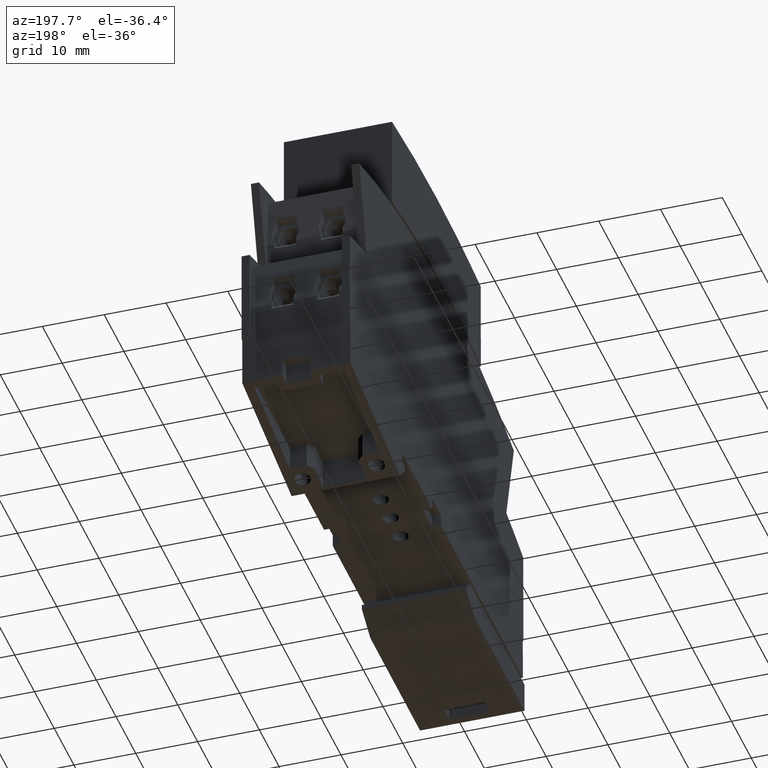
[diagram: clean part render]
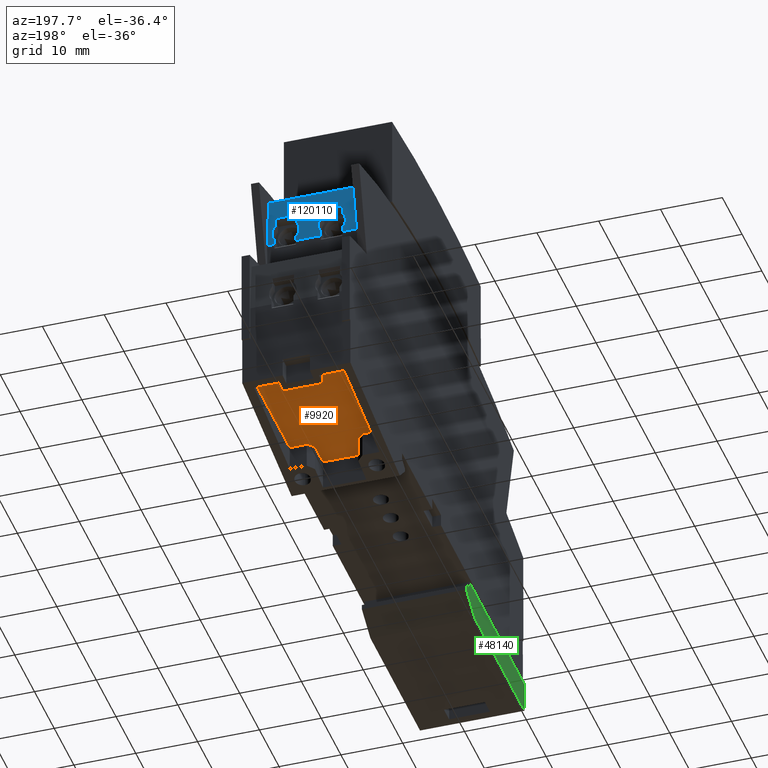
[diagram: same view with three faces highlighted in distinct colors, each labeled with its STEP entity id]
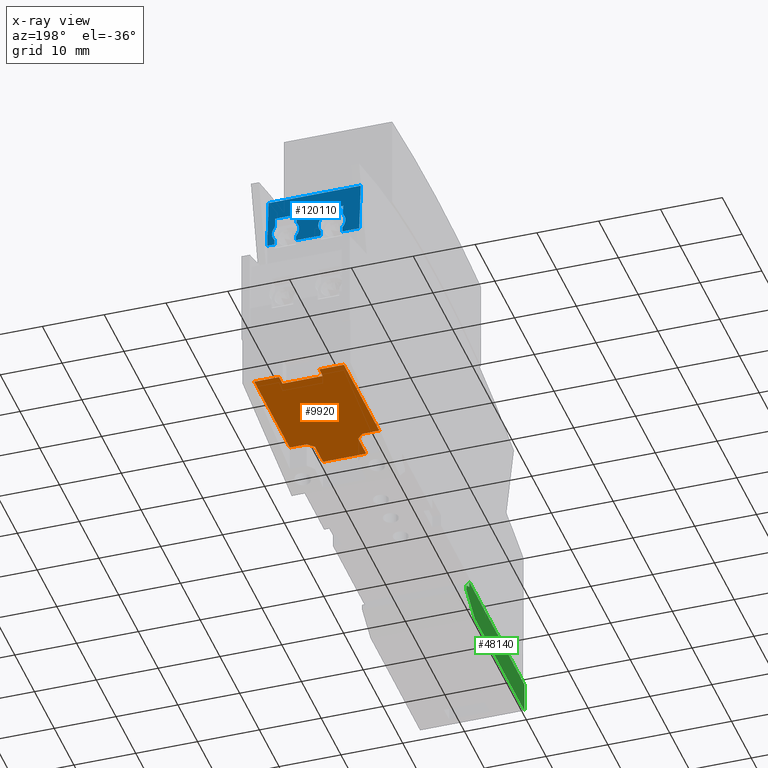
[diagram: x-ray of the same camera — body ghosted, the three highlighted faces saturated]
A machine part, auxiliary view with three faces highlighted in distinct colors.
The next image is the same camera in x-ray (body ghosted, the three faces saturated) — at least one of them is partly hidden behind the body in this view.
Their STEP definitions:

[orange] entity #9920 — the highlighted planar face has unit normal (-0, -0.0017, -1).
#8730=CARTESIAN_POINT('',(15.7920688286419,-0.134378830401207,
8.74999999999998));
#8740=DIRECTION('',(-0.00174532836589892,-0.999998476913288,
-1.81497852658377E-18));
#8750=DIRECTION('',(-0.999998476913288,0.00174532836589892,
2.39756207454349E-18));
#8760=AXIS2_PLACEMENT_3D('',#8730,#8740,#8750);
#8770=PLANE('',#8760);
#8780=CARTESIAN_POINT('',(-58.3078183106328,-0.00504999848809717,12.));
#8790=DIRECTION('',(0.999998476913288,-0.00174532836589892,
-2.37959924548987E-18));
#8800=VECTOR('',#8790,1.);
#8810=LINE('',#8780,#8800);
#8820=CARTESIAN_POINT('',(22.9920578624175,-0.146945194635677,12.));
#8830=VERTEX_POINT('',#8820);
#8840=CARTESIAN_POINT('',(24.7920551208614,-0.150086785694299,12.));
#8850=VERTEX_POINT('',#8840);
#8860=EDGE_CURVE('',#8830,#8850,#8810,.T.);
#8870=ORIENTED_EDGE('',*,*,#8860,.T.);
#8880=CARTESIAN_POINT('',(22.9920578624175,-0.146945194635677,94.));
#8890=DIRECTION('',(2.38287876757461E-18,-1.81914020319758E-18,1.));
#8900=VECTOR('',#8890,1.);
#8910=LINE('',#8880,#8900);
#8920=CARTESIAN_POINT('',(22.9920578624175,-0.146945194635677,5.5));
#8930=VERTEX_POINT('',#8920);
#8940=EDGE_CURVE('',#8930,#8830,#8910,.T.);
#8950=ORIENTED_EDGE('',*,*,#8940,.T.);
#8960=CARTESIAN_POINT('',(-58.3078183106328,-0.00504999848809717,
5.49999999999969));
#8970=DIRECTION('',(-0.999998476913288,0.00174532836589892,
-3.85256145848074E-15));
#8980=VECTOR('',#8970,1.);
#8990=LINE('',#8960,#8980);
#9000=CARTESIAN_POINT('',(24.7920551208614,-0.150086785694299,
5.50000000000001));
#9010=VERTEX_POINT('',#9000);
#9020=EDGE_CURVE('',#9010,#8930,#8990,.T.);
#9030=ORIENTED_EDGE('',*,*,#9020,.T.);
#9040=CARTESIAN_POINT('',(24.7920551208614,-0.150086785694299,94.));
#9050=DIRECTION('',(2.38287876757461E-18,-1.81914020319758E-18,1.));
#9060=VECTOR('',#9050,1.);
#9070=LINE('',#9040,#9060);
#9080=CARTESIAN_POINT('',(24.7920551208614,-0.150086785694299,1.5));
#9090=VERTEX_POINT('',#9080);
#9100=EDGE_CURVE('',#9090,#9010,#9070,.T.);
#9110=ORIENTED_EDGE('',*,*,#9100,.T.);
#9120=CARTESIAN_POINT('',(-58.3078183106328,-0.00504999848809717,
1.49999999999999));
#9130=DIRECTION('',(0.999998476913288,-0.00174532836589892,
1.42180690419244E-16));
#9140=VECTOR('',#9130,1.);
#9150=LINE('',#9120,#9140);
#9160=CARTESIAN_POINT('',(6.79208253642226,-0.118670875108116,1.5));
#9170=VERTEX_POINT('',#9160);
#9180=EDGE_CURVE('',#9170,#9090,#9150,.T.);
#9190=ORIENTED_EDGE('',*,*,#9180,.T.);
#9200=CARTESIAN_POINT('',(6.79208253642219,-0.118670875108116,94.));
#9210=DIRECTION('',(9.22801565948442E-16,2.04387088737263E-19,-1.));
#9220=VECTOR('',#9210,1.);
#9230=LINE('',#9200,#9220);
#9240=CARTESIAN_POINT('',(6.79208253642226,-0.118670875108116,4.25));
#9250=VERTEX_POINT('',#9240);
#9260=EDGE_CURVE('',#9250,#9170,#9230,.T.);
#9270=ORIENTED_EDGE('',*,*,#9260,.T.);
#9280=CARTESIAN_POINT('',(-58.3078183106328,-0.00504999848809717,
69.3499999999991));
#9290=DIRECTION('',(0.70710570420161,-0.00123413352292437,
-0.707106781186543));
#9300=VECTOR('',#9290,1.);
#9310=LINE('',#9280,#9300);
#9320=CARTESIAN_POINT('',(5.79208405950897,-0.116925546742216,
5.25000000000001));
#9330=VERTEX_POINT('',#9320);
#9340=EDGE_CURVE('',#9330,#9250,#9310,.T.);
#9350=ORIENTED_EDGE('',*,*,#9340,.T.);
#9360=CARTESIAN_POINT('',(-58.3078183106328,-0.00504999848809717,
5.24999999999999));
#9370=DIRECTION('',(0.999998476913288,-0.00174532836589892,
3.37762258789178E-16));
#9380=VECTOR('',#9370,1.);
#9390=LINE('',#9360,#9380);
#9400=CARTESIAN_POINT('',(1.69209030416451,-0.10976970044203,
5.25000000000002));
#9410=VERTEX_POINT('',#9400);
#9420=EDGE_CURVE('',#9410,#9330,#9390,.T.);
#9430=ORIENTED_EDGE('',*,*,#9420,.T.);
#9440=CARTESIAN_POINT('',(1.69209030416451,-0.109769700442033,94.));
#9450=DIRECTION('',(-2.38287876757461E-18,1.81914020319758E-18,-1.));
#9460=VECTOR('',#9450,1.);
#9470=LINE('',#9440,#9460);
#9480=CARTESIAN_POINT('',(1.69209030416451,-0.109769700442033,12.25));
#9490=VERTEX_POINT('',#9480);
#9500=EDGE_CURVE('',#9490,#9410,#9470,.T.);
#9510=ORIENTED_EDGE('',*,*,#9500,.T.);
#9520=CARTESIAN_POINT('',(-58.3078183106328,-0.00504999848809717,12.25))
;
#9530=DIRECTION('',(-0.999998476913288,0.00174532836589892,
2.37959924548987E-18));
#9540=VECTOR('',#9530,1.);
#9550=LINE('',#9520,#9540);
#9560=CARTESIAN_POINT('',(5.79208405950897,-0.116925546742216,12.25));
#9570=VERTEX_POINT('',#9560);
#9580=EDGE_CURVE('',#9570,#9490,#9550,.T.);
#9590=ORIENTED_EDGE('',*,*,#9580,.T.);
#9600=CARTESIAN_POINT('',(-58.3078183106328,-0.00504999848809717,-51.85)
);
#9610=DIRECTION('',(-0.707105704201605,0.00123413352292437,
-0.707106781186548));
#9620=VECTOR('',#9610,1.);
#9630=LINE('',#9600,#9620);
#9640=CARTESIAN_POINT('',(6.79208253642227,-0.118670875108116,13.25));
#9650=VERTEX_POINT('',#9640);
#9660=EDGE_CURVE('',#9650,#9570,#9630,.T.);
#9670=ORIENTED_EDGE('',*,*,#9660,.T.);
#9680=CARTESIAN_POINT('',(6.79208253642227,-0.118670875108116,94.));
#9690=DIRECTION('',(-2.38287876757461E-18,1.81914020319758E-18,-1.));
#9700=VECTOR('',#9690,1.);
#9710=LINE('',#9680,#9700);
#9720=CARTESIAN_POINT('',(6.79208253642226,-0.118670875108116,16.));
#9730=VERTEX_POINT('',#9720);
#9740=EDGE_CURVE('',#9730,#9650,#9710,.T.);
#9750=ORIENTED_EDGE('',*,*,#9740,.T.);
#9760=CARTESIAN_POINT('',(-58.3078183106328,-0.00504999848809717,16.));
#9770=DIRECTION('',(-0.999998476913288,0.00174532836589892,
-1.42180690419244E-16));
#9780=VECTOR('',#9770,1.);
#9790=LINE('',#9760,#9780);
#9800=CARTESIAN_POINT('',(24.7920551208614,-0.150086785694299,16.));
#9810=VERTEX_POINT('',#9800);
#9820=EDGE_CURVE('',#9810,#9730,#9790,.T.);
#9830=ORIENTED_EDGE('',*,*,#9820,.T.);
#9840=CARTESIAN_POINT('',(24.7920551208614,-0.150086785694299,94.));
#9850=DIRECTION('',(2.38287876757461E-18,-1.81914020319758E-18,1.));
#9860=VECTOR('',#9850,1.);
#9870=LINE('',#9840,#9860);
#9880=EDGE_CURVE('',#8850,#9810,#9870,.T.);
#9890=ORIENTED_EDGE('',*,*,#9880,.T.);
#9900=EDGE_LOOP('',(#9890,#9830,#9750,#9670,#9590,#9510,#9430,#9350,
#9270,#9190,#9110,#9030,#8950,#8870));
#9910=FACE_OUTER_BOUND('',#9900,.T.);
#9920=ADVANCED_FACE('',(#9910),#8770,.T.);

[blue] entity #120110 — the highlighted planar face has unit normal (0, 0.9962, 0.0872).
#93180=CARTESIAN_POINT('',(16.8580790779607,39.6604433345275,
16.2000000000001));
#93190=VERTEX_POINT('',#93180);
#93220=CARTESIAN_POINT('',(18.2360702733552,23.9099318984209,16.2));
#93230=DIRECTION('',(-0.0871557427476452,0.996194698091747,
1.02001740387436E-15));
#93240=VECTOR('',#93230,1.);
#93250=LINE('',#93220,#93240);
#93260=CARTESIAN_POINT('',(17.6190522789017,30.9624798467707,
16.2000000000001));
#93270=VERTEX_POINT('',#93260);
#93280=EDGE_CURVE('',#93270,#93190,#93250,.T.);
#94020=CARTESIAN_POINT('',(17.6190522789017,30.9624798467712,
1.29999999999998));
#94030=VERTEX_POINT('',#94020);
#94060=CARTESIAN_POINT('',(18.2360702733552,23.9099318984209,
1.29999999999997));
#94070=DIRECTION('',(0.0871557427476452,-0.996194698091747,
-6.86950496486816E-16));
#94080=VECTOR('',#94070,1.);
#94090=LINE('',#94060,#94080);
#94100=CARTESIAN_POINT('',(16.8580790779607,39.6604433345275,
1.29999999999998));
#94110=VERTEX_POINT('',#94100);
#94120=EDGE_CURVE('',#94110,#94030,#94090,.T.);
#118080=CARTESIAN_POINT('',(17.6190522789017,30.9624798467707,0.));
#118090=DIRECTION('',(1.18758417905695E-18,-6.93025158539903E-16,1.));
#118100=VECTOR('',#118090,1.);
#118110=LINE('',#118080,#118100);
#118120=CARTESIAN_POINT('',(17.6190522789017,30.9624798467707,15.05));
#118130=VERTEX_POINT('',#118120);
#118140=EDGE_CURVE('',#118130,#93270,#118110,.T.);
#118360=CARTESIAN_POINT('',(17.6190522789017,30.9624798467707,11.55));
#118370=VERTEX_POINT('',#118360);
#118400=CARTESIAN_POINT('',(17.6190522789017,30.9624798467707,
7.54999999999997));
#118410=VERTEX_POINT('',#118400);
#118420=EDGE_CURVE('',#118410,#118370,#118110,.T.);
#118640=CARTESIAN_POINT('',(17.6190522789017,30.9624798467707,4.05));
#118650=VERTEX_POINT('',#118640);
#118680=EDGE_CURVE('',#94030,#118650,#118110,.T.);
#118810=CARTESIAN_POINT('',(16.8580790779607,39.6604433345275,
1.29999999999999));
#118820=DIRECTION('',(0.996194698091747,0.0871557427476452,
5.92180573726356E-17));
#118830=DIRECTION('',(0.0871557427476452,-0.996194698091747,
-6.90491493362845E-16));
#118840=AXIS2_PLACEMENT_3D('',#118810,#118820,#118830);
#118850=PLANE('',#118840);
#118860=ORIENTED_EDGE('',*,*,#118680,.F.);
#118870=CARTESIAN_POINT('',(18.2360702733552,23.9099318984209,4.05));
#118880=DIRECTION('',(0.0871557427476452,-0.996194698091747,
5.48172618408671E-16));
#118890=VECTOR('',#118880,1.);
#118900=LINE('',#118870,#118890);
#118910=CARTESIAN_POINT('',(17.5397066742956,31.8694042574126,
4.04999999999999));
#118920=VERTEX_POINT('',#118910);
#118930=EDGE_CURVE('',#118920,#118650,#118900,.T.);
#118940=ORIENTED_EDGE('',*,*,#118930,.T.);
#118950=CARTESIAN_POINT('',(17.4230462453693,33.2028390617033,
5.79999999999944));
#118960=DIRECTION('',(0.996194698091747,0.0871557427476452,
5.92180573726357E-17));
#118970=DIRECTION('',(0.0871557427476452,-0.996194698091747,
4.75039356337726E-15));
#118980=AXIS2_PLACEMENT_3D('',#118950,#118960,#118970);
#118990=ELLIPSE('',#118980,2.20874427410552,2.2);
#119000=CARTESIAN_POINT('',(17.3063858164429,34.5362738659939,
4.04999999999997));
#119010=VERTEX_POINT('',#119000);
#119020=EDGE_CURVE('',#118920,#119010,#118990,.T.);
#119030=ORIENTED_EDGE('',*,*,#119020,.F.);
#119040=CARTESIAN_POINT('',(18.2360702733552,23.9099318984209,
4.04999999999997));
#119050=DIRECTION('',(0.0871557427476452,-0.996194698091747,
2.42861286636753E-16));
#119060=VECTOR('',#119050,1.);
#119070=LINE('',#119040,#119060);
#119080=CARTESIAN_POINT('',(17.1607129788258,36.2013220190496,
4.04999999999997));
#119090=VERTEX_POINT('',#119080);
#119100=EDGE_CURVE('',#119090,#119010,#119070,.T.);
#119110=ORIENTED_EDGE('',*,*,#119100,.T.);
#119120=CARTESIAN_POINT('',(17.1607129788258,36.2013220190496,17.5));
#119130=DIRECTION('',(7.64897046411105E-18,5.92022876792269E-16,-1.));
#119140=VECTOR('',#119130,1.);
#119150=LINE('',#119120,#119140);
#119160=CARTESIAN_POINT('',(17.1607129788258,36.2013220190496,
7.54999999999997));
#119170=VERTEX_POINT('',#119160);
#119180=EDGE_CURVE('',#119170,#119090,#119150,.T.);
#119190=ORIENTED_EDGE('',*,*,#119180,.T.);
#119200=CARTESIAN_POINT('',(18.2360702733552,23.9099318984209,
7.54999999999997));
#119210=DIRECTION('',(-0.0871557427476452,0.996194698091747,
-2.42861286636753E-16));
#119220=VECTOR('',#119210,1.);
#119230=LINE('',#119200,#119220);
#119240=CARTESIAN_POINT('',(17.3063858164431,34.5362738659925,
7.54999999999997));
#119250=VERTEX_POINT('',#119240);
#119260=EDGE_CURVE('',#119250,#119170,#119230,.T.);
#119270=ORIENTED_EDGE('',*,*,#119260,.T.);
#119280=CARTESIAN_POINT('',(17.4230462453693,33.2028390617033,
5.79999999999944));
#119290=DIRECTION('',(0.996194698091747,0.0871557427476452,
5.92180573726357E-17));
#119300=DIRECTION('',(0.0871557427476452,-0.996194698091747,
-9.19046958288558E-15));
#119310=AXIS2_PLACEMENT_3D('',#119280,#119290,#119300);
#119320=ELLIPSE('',#119310,2.20874427410552,2.2);
#119330=CARTESIAN_POINT('',(17.5397066742955,31.869404257414,
7.54999999999997));
#119340=VERTEX_POINT('',#119330);
#119350=EDGE_CURVE('',#119250,#119340,#119320,.T.);
#119360=ORIENTED_EDGE('',*,*,#119350,.F.);
#119370=CARTESIAN_POINT('',(18.2360702733552,23.9099318984209,
7.54999999999997));
#119380=DIRECTION('',(-0.0871557427476452,0.996194698091747,
-2.42861286636753E-16));
#119390=VECTOR('',#119380,1.);
#119400=LINE('',#119370,#119390);
#119410=EDGE_CURVE('',#118410,#119340,#119400,.T.);
#119420=ORIENTED_EDGE('',*,*,#119410,.T.);
#119430=ORIENTED_EDGE('',*,*,#118420,.F.);
#119440=CARTESIAN_POINT('',(18.2360702733552,23.9099318984209,11.55));
#119450=DIRECTION('',(0.0871557427476452,-0.996194698091747,
2.42861286636753E-16));
#119460=VECTOR('',#119450,1.);
#119470=LINE('',#119440,#119460);
#119480=CARTESIAN_POINT('',(17.5397066742955,31.8694042574133,11.55));
#119490=VERTEX_POINT('',#119480);
#119500=EDGE_CURVE('',#119490,#118370,#119470,.T.);
#119510=ORIENTED_EDGE('',*,*,#119500,.T.);
#119520=CARTESIAN_POINT('',(17.4230462453693,33.2028390617033,13.3));
#119530=DIRECTION('',(0.996194698091747,0.0871557427476452,
5.92180573726357E-17));
#119540=DIRECTION('',(0.0871557427476452,-0.996194698091747,
4.75039356337721E-15));
#119550=AXIS2_PLACEMENT_3D('',#119520,#119530,#119540);
#119560=ELLIPSE('',#119550,2.20874427410552,2.2);
#119570=CARTESIAN_POINT('',(17.306385816443,34.5362738659932,11.55));
#119580=VERTEX_POINT('',#119570);
#119590=EDGE_CURVE('',#119490,#119580,#119560,.T.);
#119600=ORIENTED_EDGE('',*,*,#119590,.F.);
#119610=CARTESIAN_POINT('',(18.2360702733552,23.9099318984209,11.55));
#119620=DIRECTION('',(0.0871557427476452,-0.996194698091747,
2.42861286636753E-16));
#119630=VECTOR('',#119620,1.);
#119640=LINE('',#119610,#119630);
#119650=CARTESIAN_POINT('',(17.1607129788258,36.2013220190496,11.55));
#119660=VERTEX_POINT('',#119650);
#119670=EDGE_CURVE('',#119660,#119580,#119640,.T.);
#119680=ORIENTED_EDGE('',*,*,#119670,.T.);
#119690=CARTESIAN_POINT('',(17.1607129788258,36.2013220190496,17.5));
#119700=DIRECTION('',(7.64897046411105E-18,5.92022876792269E-16,-1.));
#119710=VECTOR('',#119700,1.);
#119720=LINE('',#119690,#119710);
#119730=CARTESIAN_POINT('',(17.1607129788258,36.2013220190496,15.05));
#119740=VERTEX_POINT('',#119730);
#119750=EDGE_CURVE('',#119740,#119660,#119720,.T.);
#119760=ORIENTED_EDGE('',*,*,#119750,.T.);
#119770=CARTESIAN_POINT('',(18.2360702733552,23.9099318984209,15.05));
#119780=DIRECTION('',(-0.0871557427476452,0.996194698091747,
-2.42861286636753E-16));
#119790=VECTOR('',#119780,1.);
#119800=LINE('',#119770,#119790);
#119810=CARTESIAN_POINT('',(17.306385816443,34.5362738659932,15.05));
#119820=VERTEX_POINT('',#119810);
#119830=EDGE_CURVE('',#119820,#119740,#119800,.T.);
#119840=ORIENTED_EDGE('',*,*,#119830,.T.);
#119850=CARTESIAN_POINT('',(17.4230462453693,33.2028390617033,13.3));
#119860=DIRECTION('',(0.996194698091747,0.0871557427476452,
5.92180573726357E-17));
#119870=DIRECTION('',(0.0871557427476452,-0.996194698091747,
7.80948659615989E-15));
#119880=AXIS2_PLACEMENT_3D('',#119850,#119860,#119870);
#119890=ELLIPSE('',#119880,2.20874427410552,2.2);
#119900=CARTESIAN_POINT('',(17.5397066742955,31.8694042574133,15.05));
#119910=VERTEX_POINT('',#119900);
#119920=EDGE_CURVE('',#119820,#119910,#119890,.T.);
#119930=ORIENTED_EDGE('',*,*,#119920,.F.);
#119940=CARTESIAN_POINT('',(18.2360702733552,23.9099318984209,15.05));
#119950=DIRECTION('',(-0.0871557427476452,0.996194698091747,
-2.42861286636753E-16));
#119960=VECTOR('',#119950,1.);
#119970=LINE('',#119940,#119960);
#119980=EDGE_CURVE('',#118130,#119910,#119970,.T.);
#119990=ORIENTED_EDGE('',*,*,#119980,.T.);
#120000=ORIENTED_EDGE('',*,*,#118140,.F.);
#120010=ORIENTED_EDGE('',*,*,#93280,.F.);
#120020=CARTESIAN_POINT('',(16.8580790779607,39.6604433345275,
1.29999999999999));
#120030=DIRECTION('',(1.18758417905695E-18,-6.93025158539903E-16,1.));
#120040=VECTOR('',#120030,1.);
#120050=LINE('',#120020,#120040);
#120060=EDGE_CURVE('',#94110,#93190,#120050,.T.);
#120070=ORIENTED_EDGE('',*,*,#120060,.T.);
#120080=ORIENTED_EDGE('',*,*,#94120,.F.);
#120090=EDGE_LOOP('',(#120080,#120070,#120010,#120000,#119990,#119930,
#119840,#119760,#119680,#119600,#119510,#119430,#119420,#119360,#119270,
#119190,#119110,#119030,#118940,#118860));
#120100=FACE_OUTER_BOUND('',#120090,.T.);
#120110=ADVANCED_FACE('',(#120100),#118850,.T.);

[green] entity #48140 — the highlighted planar face has unit normal (-1, -0, 0).
#3840=CARTESIAN_POINT('',(-61.2078139136722,-2.8421709430404E-14,
0.299999999999994));
#3850=VERTEX_POINT('',#3840);
#3880=CARTESIAN_POINT('',(-4.49999999999997,0.,0.299999999999994));
#3890=DIRECTION('',(-1.,-4.41495656790506E-16,1.35525271560688E-20));
#3900=VECTOR('',#3890,1.);
#3910=LINE('',#3880,#3900);
#3920=CARTESIAN_POINT('',(-35.,-1.4210854715202E-14,0.299999999999994));
#3930=VERTEX_POINT('',#3920);
#3940=EDGE_CURVE('',#3930,#3850,#3910,.T.);
#43900=CARTESIAN_POINT('',(-63.,-3.19744231092045E-14,0.299999999999994)
);
#43910=VERTEX_POINT('',#43900);
#43940=CARTESIAN_POINT('',(-17.5000000000001,-1.06581410364015E-14,
0.299999999999994));
#43950=DIRECTION('',(1.,4.41495656790506E-16,-1.35525271560688E-20));
#43960=VECTOR('',#43950,1.);
#43970=LINE('',#43940,#43960);
#43980=EDGE_CURVE('',#43910,#3850,#43970,.T.);
#45470=CARTESIAN_POINT('',(-37.8301270189222,-5.00000000000001,
0.299999999999994));
#45480=VERTEX_POINT('',#45470);
#45510=CARTESIAN_POINT('',(-68.4771667671577,-5.00000000000003,
0.299999999999994));
#45520=DIRECTION('',(-1.,-4.41495656790506E-16,1.35525271560688E-20));
#45530=VECTOR('',#45520,1.);
#45540=LINE('',#45510,#45530);
#45550=CARTESIAN_POINT('',(-63.,-5.00000000000003,0.299999999999994));
#45560=VERTEX_POINT('',#45550);
#45570=EDGE_CURVE('',#45480,#45560,#45540,.T.);
#46670=CARTESIAN_POINT('',(-33.5,-2.50000000000001,0.299999999999994));
#46680=VERTEX_POINT('',#46670);
#46710=CARTESIAN_POINT('',(-68.4771667671577,-22.6940766485087,
0.299999999999994));
#46720=DIRECTION('',(-0.866025403784441,-0.499999999999995,0.));
#46730=VECTOR('',#46720,1.);
#46740=LINE('',#46710,#46730);
#46750=EDGE_CURVE('',#46680,#45480,#46740,.T.);
#46980=CARTESIAN_POINT('',(-33.5,-1.70000000000002,0.299999999999994));
#46990=VERTEX_POINT('',#46980);
#47020=CARTESIAN_POINT('',(-33.5,8.00000000000001,0.299999999999994));
#47030=DIRECTION('',(4.41495656790506E-16,-1.,-9.86076131526265E-32));
#47040=VECTOR('',#47030,1.);
#47050=LINE('',#47020,#47040);
#47060=EDGE_CURVE('',#46990,#46680,#47050,.T.);
#47290=CARTESIAN_POINT('',(-35.,-1.00000000000001,0.299999999999994));
#47300=VERTEX_POINT('',#47290);
#47330=CARTESIAN_POINT('',(-68.4771667671577,14.6226778246735,
0.299999999999994));
#47340=DIRECTION('',(0.906183139995266,-0.422885465331123,0.));
#47350=VECTOR('',#47340,1.);
#47360=LINE('',#47330,#47350);
#47370=EDGE_CURVE('',#47300,#46990,#47360,.T.);
#47560=CARTESIAN_POINT('',(-35.,23.9099318984209,0.299999999999994));
#47570=DIRECTION('',(4.41495656790506E-16,-1.,-9.86076131526265E-32));
#47580=VECTOR('',#47570,1.);
#47590=LINE('',#47560,#47580);
#47600=EDGE_CURVE('',#3930,#47300,#47590,.T.);
#47940=CARTESIAN_POINT('',(-48.7,-2.50000000000002,0.299999999999994));
#47950=DIRECTION('',(-1.35525271560688E-20,9.86016297707485E-32,-1.));
#47960=DIRECTION('',(-1.,-4.41495656790506E-16,1.35525271560688E-20));
#47970=AXIS2_PLACEMENT_3D('',#47940,#47950,#47960);
#47980=PLANE('',#47970);
#47990=ORIENTED_EDGE('',*,*,#3940,.F.);
#48000=ORIENTED_EDGE('',*,*,#43980,.T.);
#48010=CARTESIAN_POINT('',(-63.,8.00000000000001,0.299999999999994));
#48020=DIRECTION('',(-4.41495656790506E-16,1.,9.86076131526265E-32));
#48030=VECTOR('',#48020,1.);
#48040=LINE('',#48010,#48030);
#48050=EDGE_CURVE('',#45560,#43910,#48040,.T.);
#48060=ORIENTED_EDGE('',*,*,#48050,.T.);
#48070=ORIENTED_EDGE('',*,*,#45570,.T.);
#48080=ORIENTED_EDGE('',*,*,#46750,.T.);
#48090=ORIENTED_EDGE('',*,*,#47060,.T.);
#48100=ORIENTED_EDGE('',*,*,#47370,.T.);
#48110=ORIENTED_EDGE('',*,*,#47600,.T.);
#48120=EDGE_LOOP('',(#48110,#48100,#48090,#48080,#48070,#48060,#48000,
#47990));
#48130=FACE_OUTER_BOUND('',#48120,.T.);
#48140=ADVANCED_FACE('',(#48130),#47980,.T.);